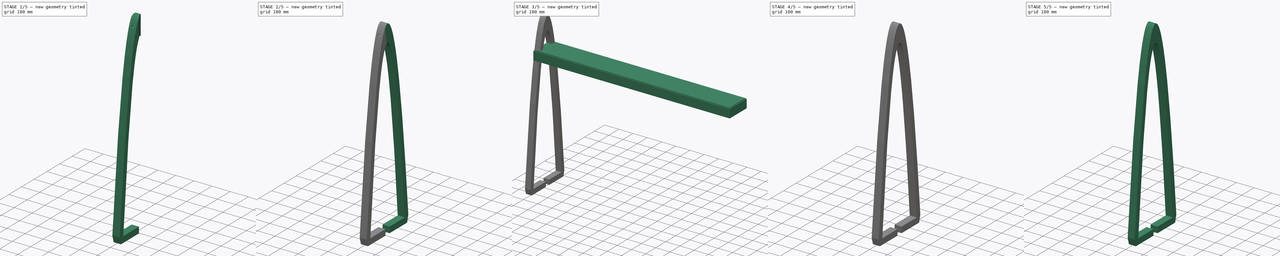
[diagram: build sequence overview — one tinted view per stage of 5, left to right]
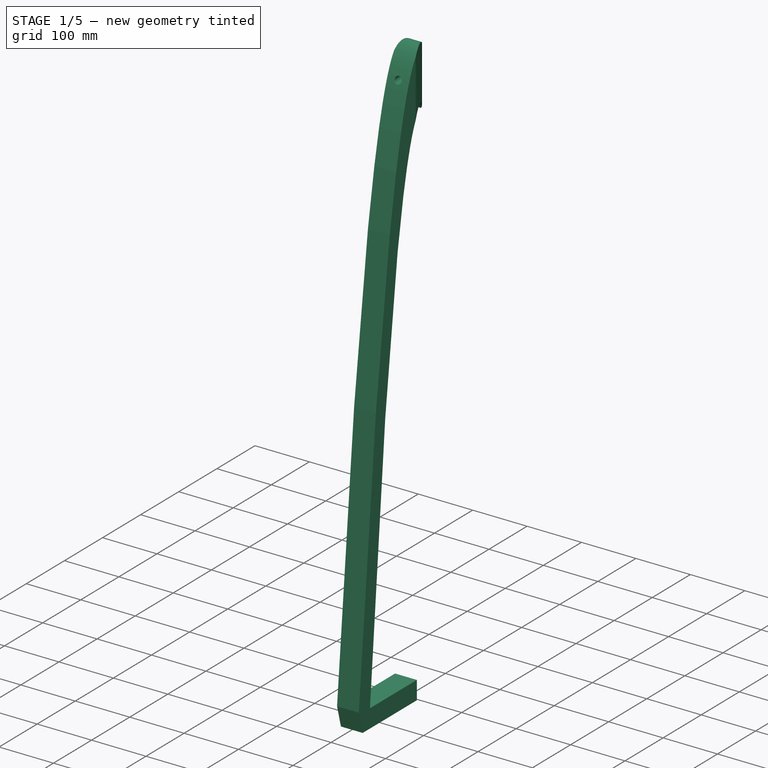
[diagram: stage 1 of 5 — iso view after this stage's code; geometry added in this stage tinted green]
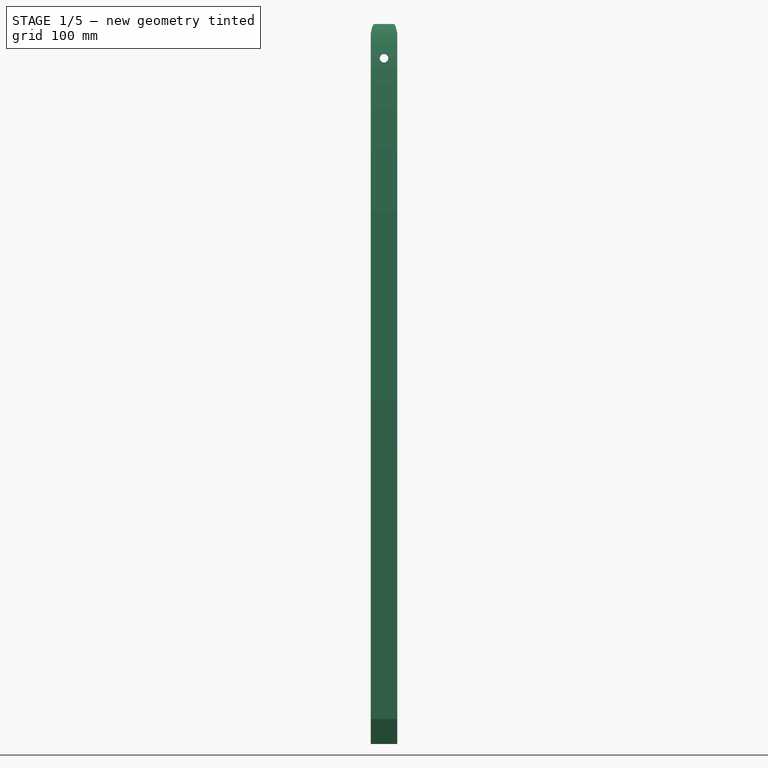
[diagram: stage 1 of 5 — front view after this stage's code; geometry added in this stage tinted green]
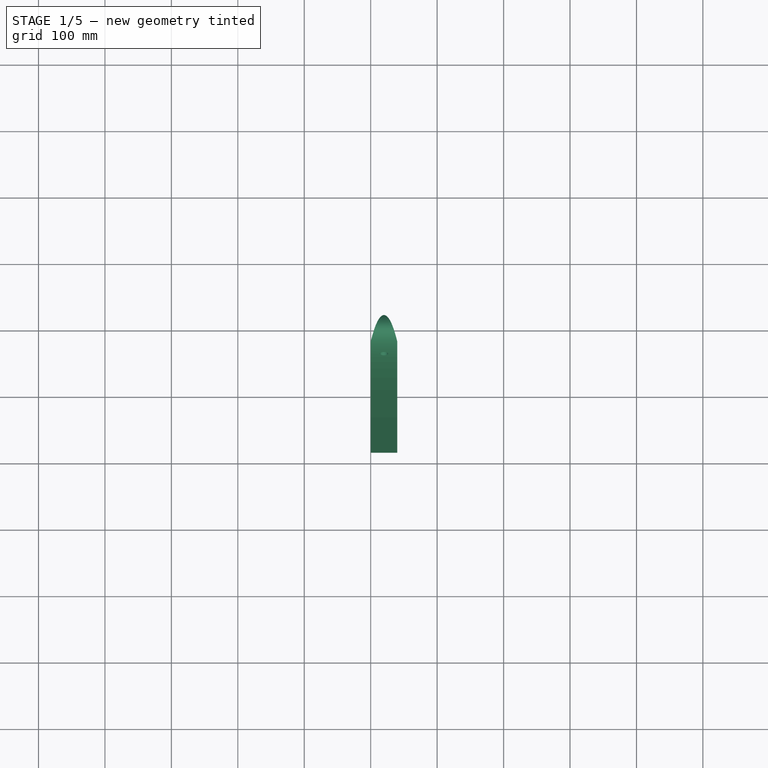
[diagram: stage 1 of 5 — top view after this stage's code; geometry added in this stage tinted green]
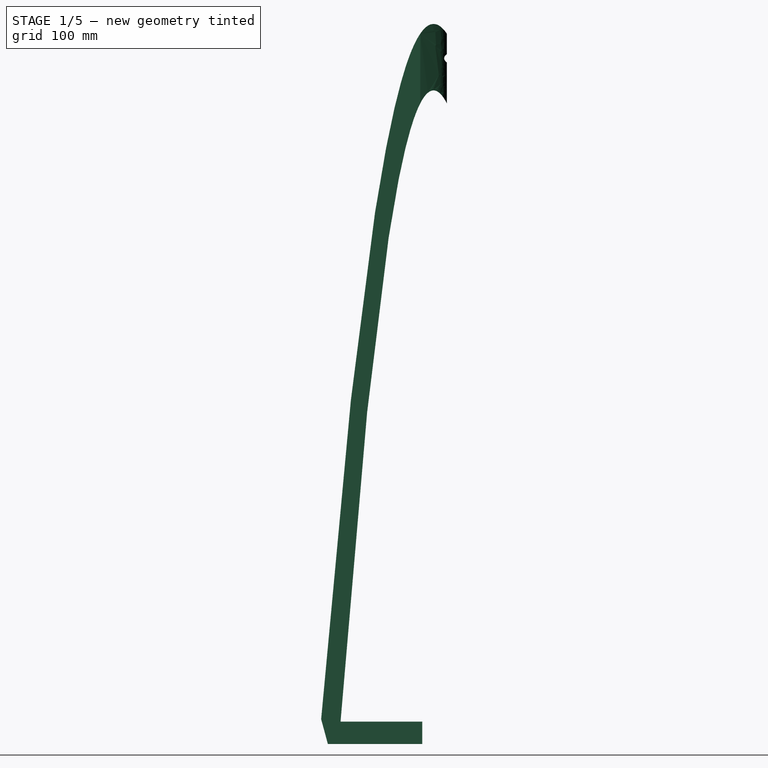
[diagram: stage 1 of 5 — right view after this stage's code; geometry added in this stage tinted green]
FCSTD DOCUMENT  (FreeCAD 0.20R29177 +426 (Git))
Label: glasbird
License: All rights reserved
LicenseURL: http://en.wikipedia.org/wiki/All_rights_reserved
objects: Part::Feature×11, Sketcher::SketchObject×9, Part::Extrusion×4, PartDesign::FeatureBase×4, PartDesign::Hole×4, Part::Box×2, PartDesign::Body×2, App::DocumentObjectGroup×2, Part::MultiFuse×2, Part::Cut×1
note: 43 computed .brp shape members not serialized (recipe doc carries the construction recipe); baked Part::Feature solids carry a one-line shape summary decoded from their .brp

FEATURE [Sketcher::SketchObject] Sketch001
  ExternalGeometry = -> [Extrude]
  FullyConstrained = false
  sketch-geometry (9):
    g0: LineSegment StartX=40 StartY=225.028 StartZ=0 EndX=40 EndY=-54.9723 EndZ=0
    g1: GeomPoint X=0 Y=85.0277 Z=0
    g2: LineSegment StartX=-233.878 StartY=342.883 StartZ=0 EndX=-233.878 EndY=340.794 EndZ=0
    g3: LineSegment StartX=0 StartY=85.0277 StartZ=0 EndX=40 EndY=85.0277 EndZ=0
    g4: LineSegment StartX=20 StartY=105.028 StartZ=0 EndX=20 EndY=65.0277 EndZ=0
    g5: GeomPoint X=20 Y=85.0277 Z=0
    g6: ArcOfParabola CenterX=20 CenterY=105.028 CenterZ=0 NormalX=0 NormalY=0 NormalZ=1 Focal=2.5 AngleXU=-1.5708 StartAngle=-31.4946 EndAngle=40.1554
    g7: GeomPoint X=20 Y=102.528 Z=0
    g8: LineSegment StartX=20 StartY=105.028 StartZ=0 EndX=20 EndY=102.528 EndZ=0
  constraints (16):
    c: Coincident(g0,g-3)
    c: Coincident(g0,g-4)
    c: PointOnObject(g3,g-2)
    c: PointOnObject(g5,g3)
    c: PointOnObject(g5,g4)
    c: Symmetric(g1,g3,g4)
    c: Symmetric(g4,g4,g3)
    c: Symmetric(g0,g0,g3)
    c: Symmetric(g-3,g-4,g1)
    c: Equal(g4,g3)
    c: InternalAlignment(g7,g6)
    c: Coincident(g7,g8)
    c: Coincident(g6,g8)
    c: PointOnObject(g7,g4)
    c: Coincident(g6,g4)
    c: Distance(g8) = 2.5
FEATURE [Part::Extrusion] Extrude001
  Base = -> Sketch001
  Dir = (0,0,1)
  DirMode = 2
  FaceMakerClass = Part::FaceMakerBullseye
  LengthFwd = 400
  LengthRev = 0
  Solid = false
  Symmetric = false
FEATURE [Part::Feature] Extrude001_solid  label="parabolajoin"
  shape: bbox 71.65 x 161.2 x 400 mm, 1 faces (baked)
FEATURE [Part::Feature] Solid  label="Penis"
  shape: bbox 40 x 189.2 x 1084 mm, 7 faces (baked)
FEATURE [Part::Feature] Solid001  label="Vagina"
  shape: bbox 40 x 189 x 1084 mm, 7 faces (baked)
FEATURE [Sketcher::SketchObject] Sketch002
  FullyConstrained = false
  MapMode = 5
  Placement = pos=(0,0,0) rot=(1,0,0;1.5708rad)
  sketch-geometry (3):
    g0: LineSegment StartX=20 StartY=263.604 StartZ=0 EndX=20 EndY=161.954 EndZ=0
    g1: LineSegment StartX=0 StartY=212.779 StartZ=0 EndX=40 EndY=212.779 EndZ=0
    g2: Circle CenterX=20 CenterY=212.779 CenterZ=0 NormalX=0 NormalY=0 NormalZ=1 AngleXU=0 Radius=10
  constraints (8):
    c: Vertical(g0)
    c: PointOnObject(g1,g-2)
    c: Symmetric(g0,g0,g1)
    c: PointOnObject(g2,g1)
    c: Tangent(g2,g0) = -1.5708
    c: Symmetric(g1,g1,g0)
    c: Distance(g1) = 40
    c: Diameter(g2) = 20
FEATURE [Part::Feature] Face  label="holecircle"
  shape: bbox 20 x 2e-07 x 20 mm, 1 faces, 0 solids (baked)
FEATURE [PartDesign::FeatureBase] BaseFeature
  BaseFeature = -> Solid
FEATURE [PartDesign::Body] Body002  label="vagina leg"
  BaseFeature = -> Solid001
  Group = -> [BaseFeature001,Sketch005,Hole]
  Origin = -> Origin002
  Tip = -> Hole
FEATURE [PartDesign::Hole] Hole001  label="finshed penis leg"
  BaseFeature = -> BaseFeature
  CustomThreadClearance = 0
  Depth = 2223.75
  DepthType = 1
  Diameter = 12.7
  DrillForDepth = false
  DrillPoint = 1
  DrillPointAngle = 118
  HoleCutCountersinkAngle = 90
  HoleCutCustomValues = false
  HoleCutDepth = 0
  HoleCutDiameter = 6.1
  HoleCutType = 0
  ModelThread = false
  Profile = -> Sketch004
  Tapered = false
  TaperedAngle = 90
  ThreadClass = 0
  ThreadDepth = 2223.75
  ThreadDepthType = 0
  ThreadDirection = 0
  ThreadFit = 0
  ThreadSize = 0
  ThreadType = 0
  Threaded = false
  UseCustomThreadClearance = false
FEATURE [Part::MultiFuse] Fusion001  label="printsupportpenis"
  Shapes = -> [Solid008,Hole001]
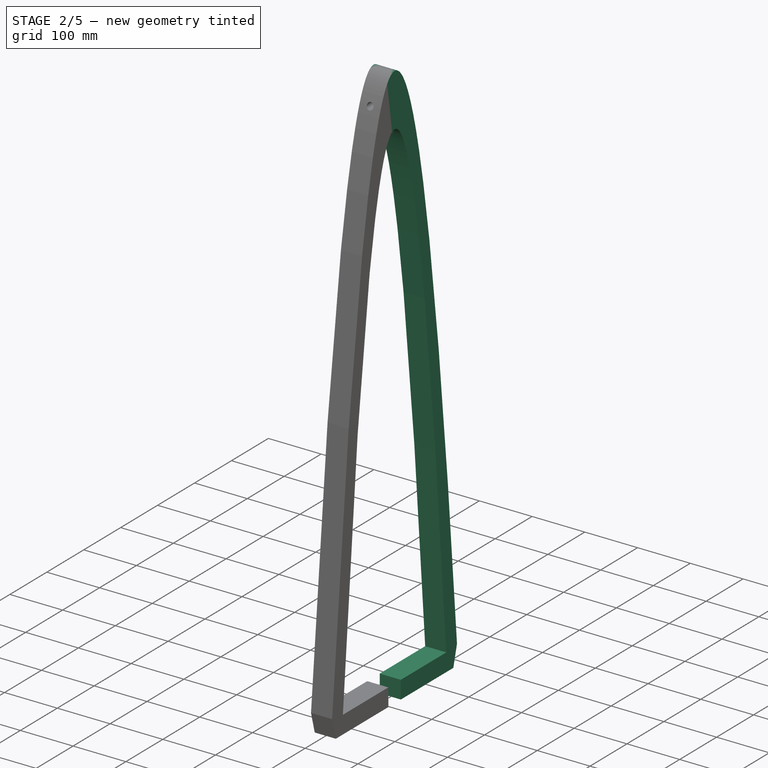
[diagram: stage 2 of 5 — iso view after this stage's code; geometry added in this stage tinted green]
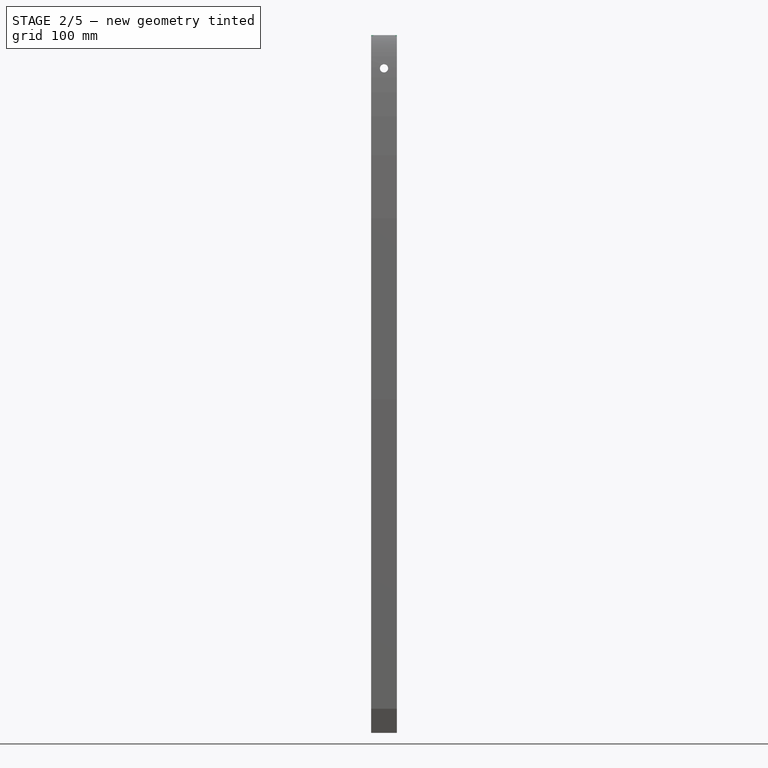
[diagram: stage 2 of 5 — front view after this stage's code; geometry added in this stage tinted green]
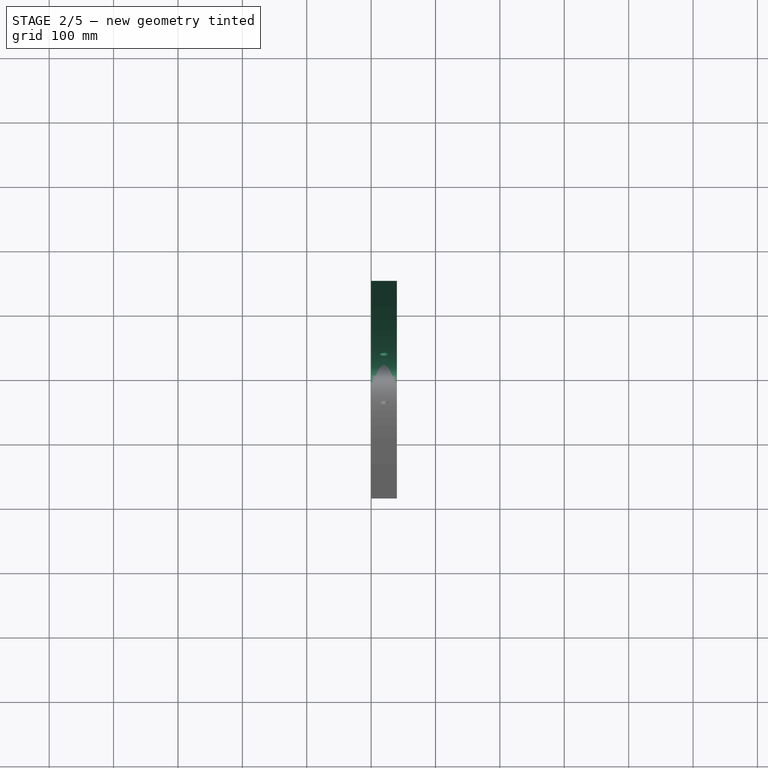
[diagram: stage 2 of 5 — top view after this stage's code; geometry added in this stage tinted green]
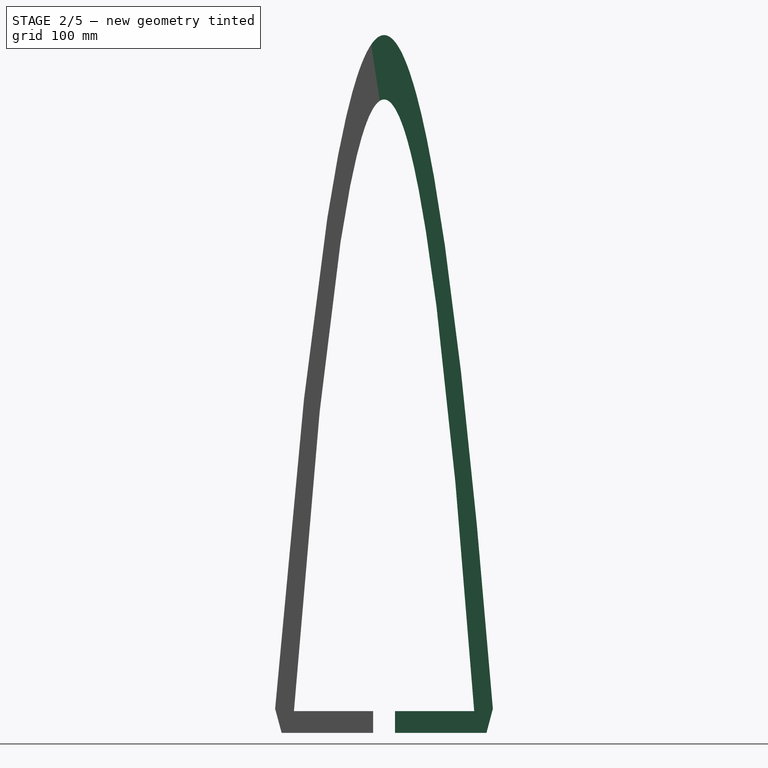
[diagram: stage 2 of 5 — right view after this stage's code; geometry added in this stage tinted green]
FEATURE [PartDesign::FeatureBase] BaseFeature001
  BaseFeature = -> Solid001
FEATURE [Sketcher::SketchObject] Sketch004
  FullyConstrained = false
  MapMode = 5
  Placement = pos=(0,0,0) rot=(1,0,0;1.5708rad)
  Support = -> [XZ_Plane002]
  sketch-geometry (3):
    g0: LineSegment StartX=20 StartY=263.604 StartZ=0 EndX=20 EndY=161.954 EndZ=0
    g1: LineSegment StartX=0 StartY=212.779 StartZ=0 EndX=40 EndY=212.779 EndZ=0
    g2: Circle CenterX=20 CenterY=212.779 CenterZ=0 NormalX=0 NormalY=0 NormalZ=1 AngleXU=0 Radius=10
  constraints (8):
    c: Vertical(g0)
    c: PointOnObject(g1,g-2)
    c: Symmetric(g0,g0,g1)
    c: PointOnObject(g2,g1)
    c: Tangent(g2,g0) = -1.5708
    c: Symmetric(g1,g1,g0)
    c: Distance(g1) = 40
    c: Diameter(g2) = 20
FEATURE [Sketcher::SketchObject] Sketch005
  FullyConstrained = false
  MapMode = 5
  Placement = pos=(0,0,0) rot=(1,0,0;1.5708rad)
  Support = -> [XZ_Plane003]
  sketch-geometry (3):
    g0: LineSegment StartX=20 StartY=263.604 StartZ=0 EndX=20 EndY=161.954 EndZ=0
    g1: LineSegment StartX=0 StartY=212.779 StartZ=0 EndX=40 EndY=212.779 EndZ=0
    g2: Circle CenterX=20 CenterY=212.779 CenterZ=0 NormalX=0 NormalY=0 NormalZ=1 AngleXU=0 Radius=10
  constraints (8):
    c: Vertical(g0)
    c: PointOnObject(g1,g-2)
    c: Symmetric(g0,g0,g1)
    c: PointOnObject(g2,g1)
    c: Tangent(g2,g0) = -1.5708
    c: Symmetric(g1,g1,g0)
    c: Distance(g1) = 40
    c: Diameter(g2) = 20
FEATURE [PartDesign::Hole] Hole  label="Finished vagina leg"
  BaseFeature = -> BaseFeature001
  CustomThreadClearance = 0
  Depth = 2249.98
  DepthType = 1
  Diameter = 12.7
  DrillForDepth = false
  DrillPoint = 1
  DrillPointAngle = 118
  HoleCutCountersinkAngle = 90
  HoleCutCustomValues = false
  HoleCutDepth = 0
  HoleCutDiameter = 6.1
  HoleCutType = 0
  ModelThread = false
  Profile = -> Sketch005
  Tapered = false
  TaperedAngle = 90
  ThreadClass = 0
  ThreadDepth = 2249.98
  ThreadDepthType = 0
  ThreadDirection = 0
  ThreadFit = 0
  ThreadSize = 0
  ThreadType = 0
  Threaded = false
  UseCustomThreadClearance = false
FEATURE [Part::Feature] Solid007
  shape: bbox 40 x 142.1 x 33.76 mm, 6 faces (baked)
FEATURE [Part::Feature] Solid008
  shape: bbox 40 x 142.1 x 33.75 mm, 6 faces (baked)
FEATURE [Part::MultiFuse] Fusion  label="printsupportvagina"
  Shapes = -> [Hole,Solid007]
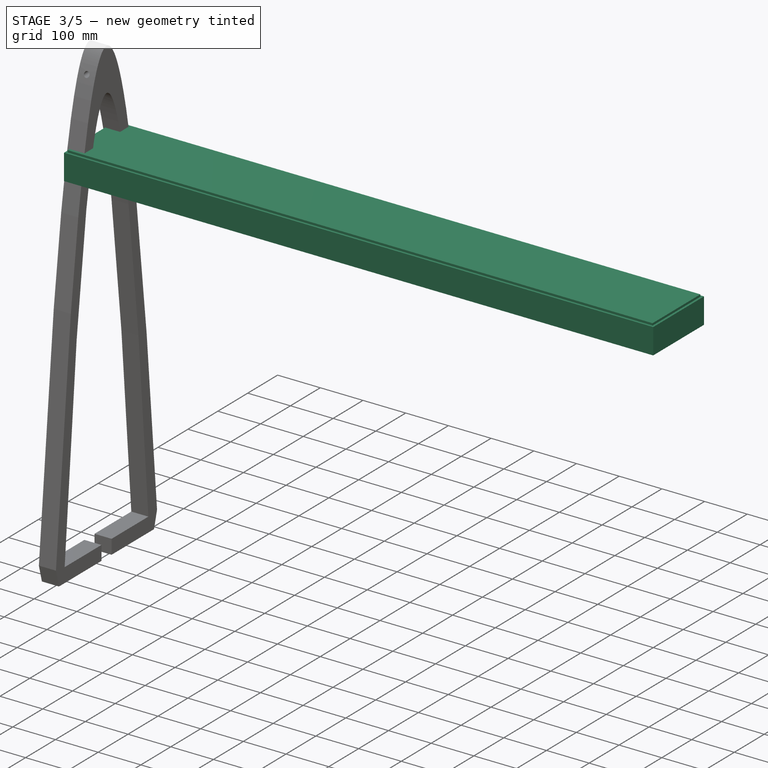
[diagram: stage 3 of 5 — iso view after this stage's code; geometry added in this stage tinted green]
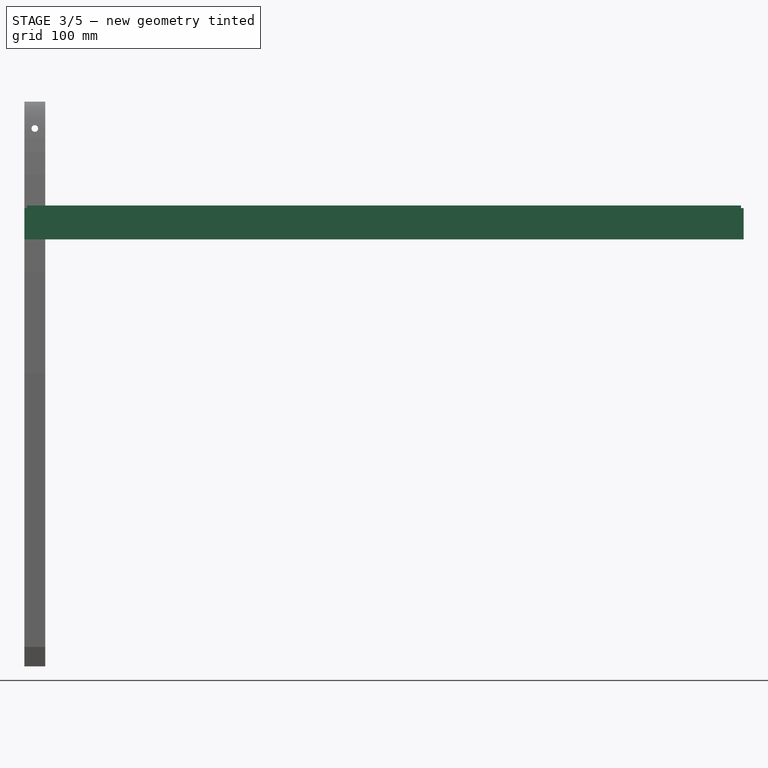
[diagram: stage 3 of 5 — front view after this stage's code; geometry added in this stage tinted green]
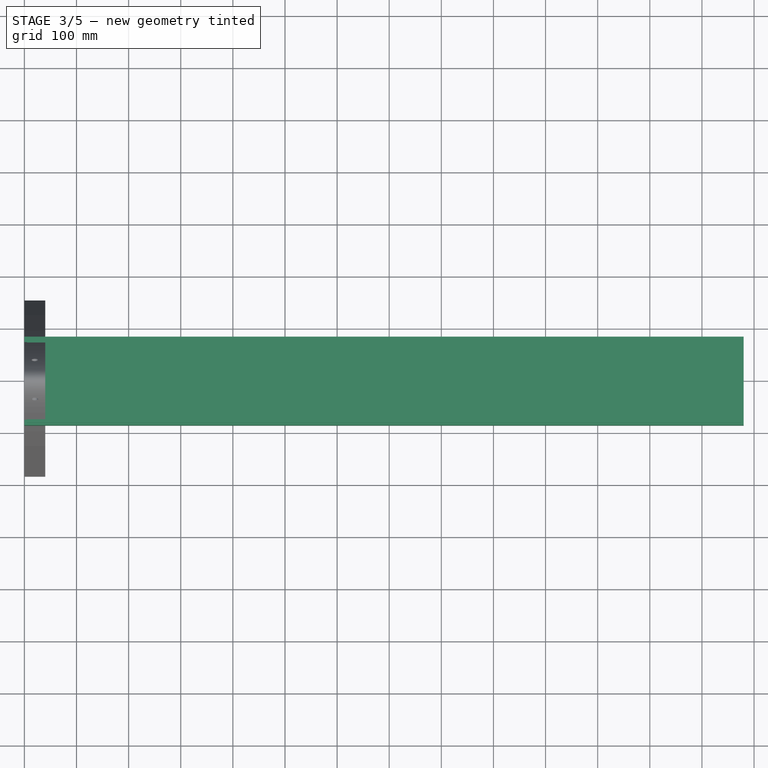
[diagram: stage 3 of 5 — top view after this stage's code; geometry added in this stage tinted green]
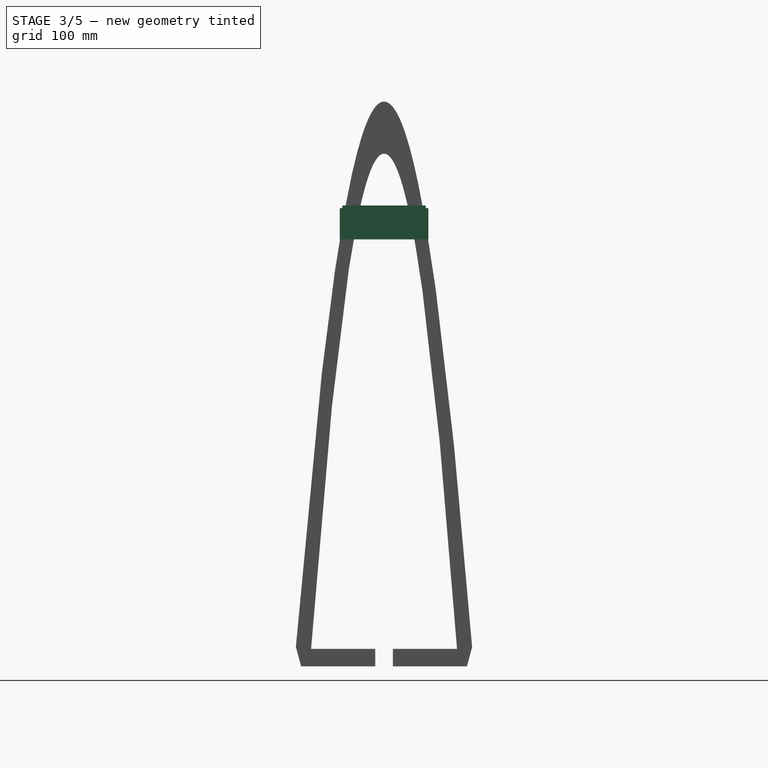
[diagram: stage 3 of 5 — right view after this stage's code; geometry added in this stage tinted green]
FEATURE [Part::Box] Box
  AttacherType = Attacher::AttachEngine3D
  Height = 60
  Length = 1380
  Width = 170
FEATURE [Part::Box] Box001
  AttacherType = Attacher::AttachEngine3D
  Height = 60
  Length = 1370
  Placement = pos=(5,5,5) rot=(0,0,1;0rad)
  Width = 160
FEATURE [Sketcher::SketchObject] Sketch008  label="ender 3 printable area"
  FullyConstrained = false
  MapMode = 5
  Placement = pos=(0,0,0) rot=(0.57735,0.57735,0.57735;2.0944rad)
  Support = -> [YZ_Plane001]
  sketch-geometry (5):
    g0: LineSegment StartX=-20.819 StartY=310.548 StartZ=0 EndX=179.181 EndY=310.548 EndZ=0
    g1: LineSegment StartX=179.181 StartY=310.548 StartZ=0 EndX=179.181 EndY=110.548 EndZ=0
    g2: LineSegment StartX=179.181 StartY=110.548 StartZ=0 EndX=-20.819 EndY=110.548 EndZ=0
    g3: LineSegment StartX=-20.819 StartY=110.548 StartZ=0 EndX=-20.819 EndY=310.548 EndZ=0
    g4: LineSegment StartX=-20.819 StartY=110.548 StartZ=0 EndX=179.181 EndY=110.548 EndZ=0
  constraints (12):
    c: Coincident(g0,g1)
    c: Coincident(g1,g2)
    c: Coincident(g2,g3)
    c: Coincident(g3,g0)
    c: Horizontal(g0)
    c: Horizontal(g2)
    c: Vertical(g1)
    c: Vertical(g3)
    c: Distance(g1) = 200
    c: Equal(g2,g1)
    c: Coincident(g4,g2)
    c: Coincident(g4,g1)
FEATURE [Part::Extrusion] Extrude002
  Base = -> Sketch008
  Dir = (1,0,0)
  DirMode = 0
  FaceMakerClass = Part::FaceMakerBullseye
  LengthFwd = 200
  LengthRev = 0
  Placement = pos=(-60,0,0) rot=(0,0,1;0rad)
  Solid = false
  Symmetric = false
FEATURE [Part::Feature] Solid005  label="ender3 penis final"
  shape: bbox 40 x 84.86 x 153.9 mm, 7 faces (baked)
FEATURE [Part::Feature] Solid006  label="ender 3 vagina final"
  shape: bbox 40 x 84.82 x 153.9 mm, 6 faces (baked)
FEATURE [App::DocumentObjectGroup] Group001  label="Leg Test Print for Ender 3"
  Group = -> [Hole002,BaseFeature002,BaseFeature003,Solid002,Solid003,XZ_Plane004,XZ_Plane005,Hole003,Sketch008,Extrude002,Solid005,Solid006]
FEATURE [Sketcher::SketchObject] Sketch009
  ExternalGeometry = -> [Extrude]
  FullyConstrained = false
  Placement = pos=(0,0,0) rot=(0.57735,0.57735,0.57735;2.0944rad)
  sketch-geometry (8):
    g0: LineSegment StartX=-74.0299 StartY=-819.335 StartZ=0 EndX=68.0853 EndY=-819.335 EndZ=0
    g1: LineSegment StartX=244.062 StartY=-819.348 StartZ=0 EndX=101.946 EndY=-819.348 EndZ=0
    g2: LineSegment StartX=-54.9723 StartY=-785.584 StartZ=0 EndX=68.0853 EndY=-785.584 EndZ=0
    g3: LineSegment StartX=101.946 StartY=-785.584 StartZ=0 EndX=225.028 EndY=-785.584 EndZ=0
    g4: LineSegment StartX=101.946 StartY=-785.584 StartZ=0 EndX=101.946 EndY=-819.348 EndZ=0
    g5: LineSegment StartX=68.0853 StartY=-785.584 StartZ=0 EndX=68.0853 EndY=-819.335 EndZ=0
    g6: LineSegment StartX=-54.9723 StartY=-785.584 StartZ=0 EndX=-74.0299 EndY=-819.335 EndZ=0
    g7: LineSegment StartX=225.028 StartY=-785.584 StartZ=0 EndX=244.062 EndY=-819.348 EndZ=0
  constraints (19):
    c: Horizontal(g0)
    c: Horizontal(g1)
    c: Equal(g0,g1)
    c: Horizontal(g2)
    c: Horizontal(g3)
    c: Coincident(g4,g3)
    c: Coincident(g4,g1)
    c: Coincident(g5,g2)
    c: Coincident(g5,g0)
    c: Vertical(g5)
    c: Vertical(g4)
    c: Coincident(g7,g3)
    c: Coincident(g7,g1)
    c: Coincident(g6,g2)
    c: Coincident(g6,g0)
    c: Coincident(g2,g-3)
    c: Coincident(g0,g-3)
    c: Coincident(g3,g-4)
    c: Coincident(g1,g-4)
FEATURE [Part::Feature] Face001
  shape: bbox 2e-07 x 318.1 x 33.76 mm, 2 faces, 0 solids (baked)
FEATURE [Part::Extrusion] Extrude003
  Base = -> Face001
  Dir = (1,0,0)
  DirMode = 2
  FaceMakerClass = Part::FaceMakerBullseye
  LengthFwd = 40
  LengthRev = 0
  Solid = true
  Symmetric = false
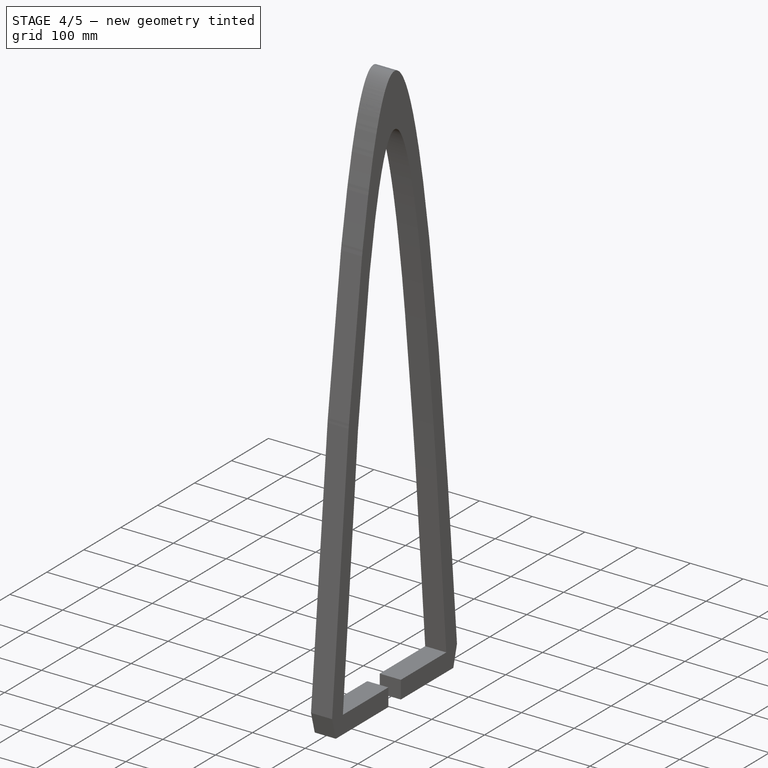
[diagram: stage 4 of 5 — iso view after this stage's code; geometry added in this stage tinted green]
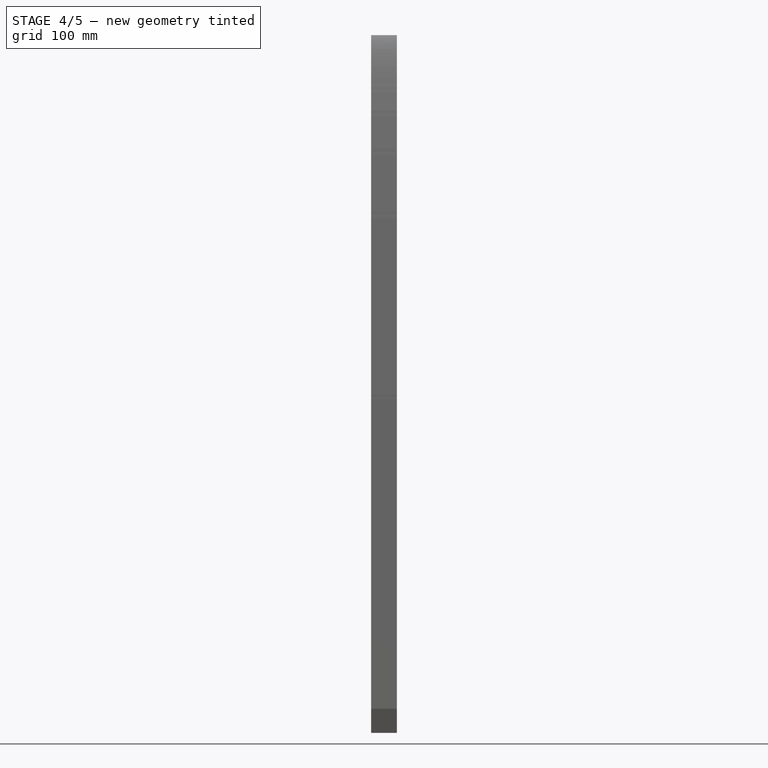
[diagram: stage 4 of 5 — front view after this stage's code; geometry added in this stage tinted green]
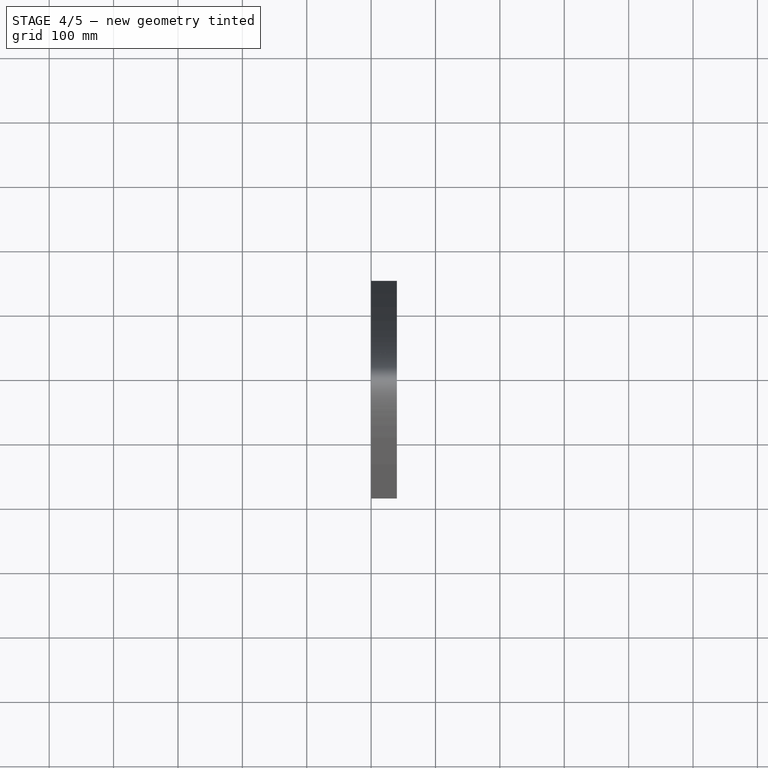
[diagram: stage 4 of 5 — top view after this stage's code; geometry added in this stage tinted green]
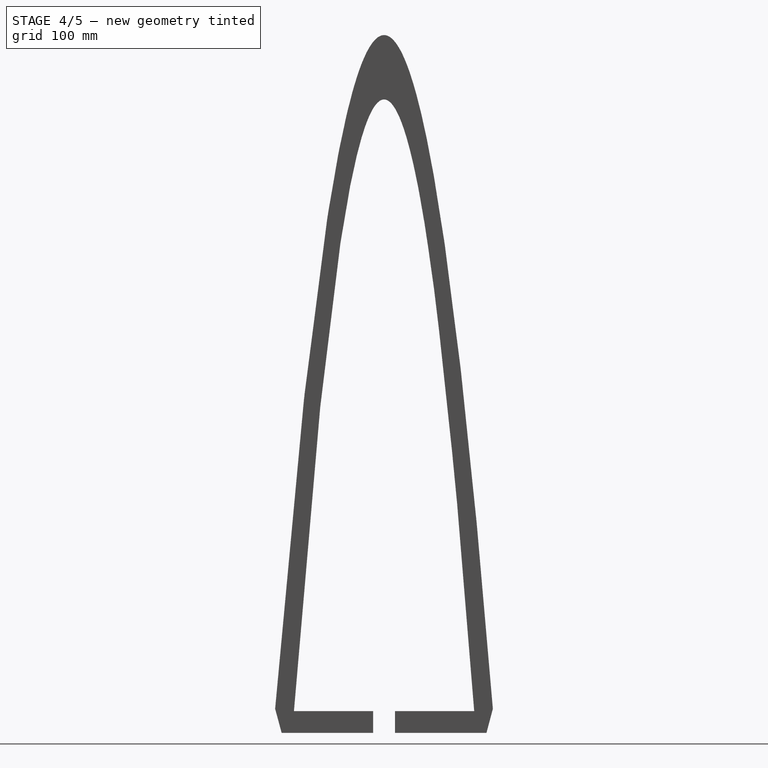
[diagram: stage 4 of 5 — right view after this stage's code; geometry added in this stage tinted green]
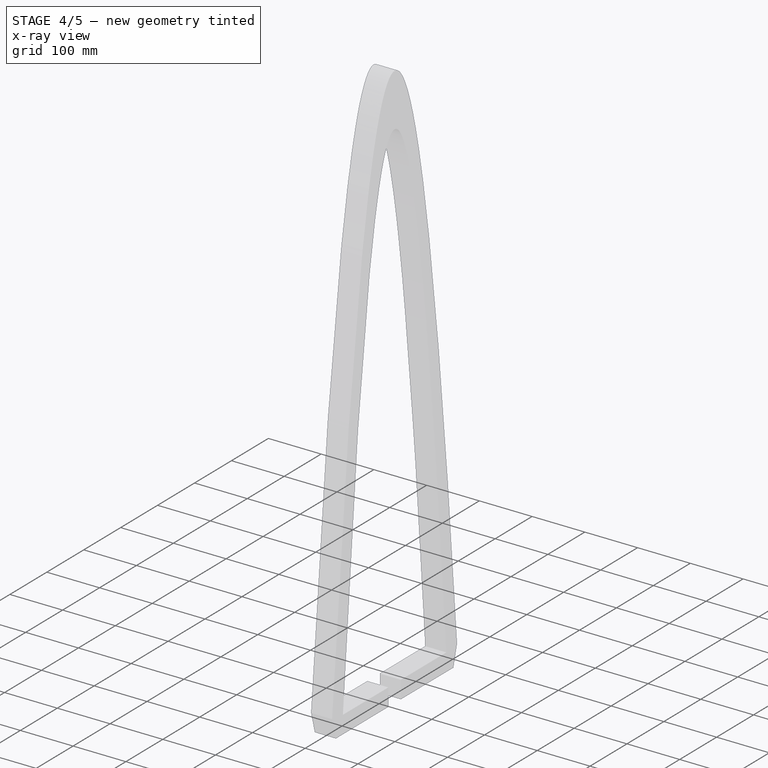
[diagram: stage 4 of 5 — x-ray composite at the iso view; earlier geometry ghosted, this stage's added geometry solid]
FEATURE [Part::Cut] Cut  label="trough"
  Base = -> Box
  Placement = pos=(66,0,0) rot=(0,0,1;0rad)
  Tool = -> Box001
FEATURE [Sketcher::SketchObject] Sketch
  ExternalGeometry = -> [Cut]
  FullyConstrained = false
  Placement = pos=(0,0,0) rot=(0.57735,0.57735,0.57735;2.0944rad)
  sketch-geometry (14):
    g0: ArcOfParabola CenterX=85.0277 CenterY=264.416 CenterZ=0 NormalX=0 NormalY=0 NormalZ=1 Focal=6.8311 AngleXU=-1.5709 StartAngle=-169.089 EndAngle=169.083
    g1: GeomPoint X=85.027 Y=257.584 Z=0
    g2: LineSegment StartX=85.0277 StartY=264.416 StartZ=0 EndX=85.027 EndY=257.584 EndZ=0
    g3: ArcOfParabola CenterX=85.0277 CenterY=164.416 CenterZ=0 NormalX=0 NormalY=0 NormalZ=1 Focal=5.15789 AngleXU=-1.5708 StartAngle=-140 EndAngle=140
    g4: GeomPoint X=85.0277 Y=159.258 Z=0
    g5: LineSegment StartX=85.0277 StartY=164.416 StartZ=0 EndX=85.0277 EndY=159.258 EndZ=0
    g6: LineSegment StartX=85.0277 StartY=164.416 StartZ=0 EndX=85.0277 EndY=-785.584 EndZ=0
    g7: LineSegment StartX=85.0277 StartY=-785.584 StartZ=0 EndX=225.028 EndY=-785.584 EndZ=0
    g8: LineSegment StartX=85.0277 StartY=-785.584 StartZ=0 EndX=-54.9723 EndY=-785.584 EndZ=0
    g9: LineSegment StartX=85.0277 StartY=164.416 StartZ=0 EndX=85.0277 EndY=264.416 EndZ=0
    g10: LineSegment StartX=-84.1654 StartY=-781.924 StartZ=0 EndX=-74.0299 EndY=-819.335 EndZ=0
    g11: LineSegment StartX=-54.9723 StartY=-785.584 StartZ=0 EndX=-74.0299 EndY=-819.335 EndZ=0
    g12: LineSegment StartX=225.028 StartY=-785.584 StartZ=0 EndX=244.062 EndY=-819.348 EndZ=0
    g13: LineSegment StartX=254.007 StartY=-781.887 StartZ=0 EndX=244.062 EndY=-819.348 EndZ=0
  constraints (32):
    c: InternalAlignment(g1,g0)
    c: Coincident(g1,g2)
    c: Coincident(g0,g2)
    c: PointOnObject(g-5,g0)
    c: PointOnObject(g-4,g0)
    c: InternalAlignment(g4,g3)
    c: Coincident(g4,g5)
    c: Coincident(g3,g5)
    c: Coincident(g6,g3)
    c: Vertical(g6)
    c: Coincident(g7,g6)
    c: Coincident(g7,g3)
    c: Horizontal(g7)
    c: Coincident(g8,g7)
    c: Coincident(g8,g3)
    c: Horizontal(g8)
    c: Equal(g7,g8)
    c: Coincident(g9,g3)
    c: Coincident(g9,g0)
    c: Distance(g6) = 950
    c: Distance(g7) = 140
    c: Perpendicular(g-1,g9)
    c: Distance(g9) = 100
    c: Coincident(g10,g0)
    c: Coincident(g11,g3)
    c: Coincident(g11,g10)
    c: Coincident(g12,g3)
    c: Coincident(g13,g0)
    c: Coincident(g13,g12)
    c: Equal(g13,g12)
    c: Equal(g12,g11)
    c: Equal(g11,g10)
FEATURE [Part::Extrusion] Extrude  label="leg"
  Base = -> Sketch
  Dir = (1,0,0)
  DirMode = 2
  FaceMakerClass = Part::FaceMakerBullseye
  LengthFwd = 40
  LengthRev = 0
  Solid = true
  Symmetric = false
FEATURE [PartDesign::Body] Body001  label="penis Leg"
  BaseFeature = -> Solid
  Group = -> [BaseFeature,Sketch004,Hole001]
  Origin = -> Origin001
  Tip = -> Hole001
FEATURE [App::DocumentObjectGroup] Group  label="Leg Master"
  Group = -> [Extrude,Extrude001,Extrude001_solid,Solid,Solid001,Face,Sketch002,Body001,Body002]
FEATURE [Sketcher::SketchObject] Sketch006
  FullyConstrained = false
  MapMode = 5
  Placement = pos=(0,0,0) rot=(1,0,0;1.5708rad)
  Support = -> [XZ_Plane004]
  sketch-geometry (3):
    g0: LineSegment StartX=20 StartY=263.604 StartZ=0 EndX=20 EndY=161.954 EndZ=0
    g1: LineSegment StartX=0 StartY=212.779 StartZ=0 EndX=40 EndY=212.779 EndZ=0
    g2: Circle CenterX=20 CenterY=212.779 CenterZ=0 NormalX=0 NormalY=0 NormalZ=1 AngleXU=0 Radius=10
  constraints (8):
    c: Vertical(g0)
    c: PointOnObject(g1,g-2)
    c: Symmetric(g0,g0,g1)
    c: PointOnObject(g2,g1)
    c: Tangent(g2,g0) = -1.5708
    c: Symmetric(g1,g1,g0)
    c: Distance(g1) = 40
    c: Diameter(g2) = 20
FEATURE [Sketcher::SketchObject] Sketch007
  FullyConstrained = false
  MapMode = 5
  Placement = pos=(0,0,0) rot=(1,0,0;1.5708rad)
  Support = -> [XZ_Plane005]
  sketch-geometry (3):
    g0: LineSegment StartX=20 StartY=263.604 StartZ=0 EndX=20 EndY=161.954 EndZ=0
    g1: LineSegment StartX=0 StartY=212.779 StartZ=0 EndX=40 EndY=212.779 EndZ=0
    g2: Circle CenterX=20 CenterY=212.779 CenterZ=0 NormalX=0 NormalY=0 NormalZ=1 AngleXU=0 Radius=10
  constraints (8):
    c: Vertical(g0)
    c: PointOnObject(g1,g-2)
    c: Symmetric(g0,g0,g1)
    c: PointOnObject(g2,g1)
    c: Tangent(g2,g0) = -1.5708
    c: Symmetric(g1,g1,g0)
    c: Distance(g1) = 40
    c: Diameter(g2) = 20
FEATURE [Part::Feature] Solid002  label="Penis001"
  shape: bbox 40 x 189.2 x 1084 mm, 7 faces (baked)
FEATURE [PartDesign::FeatureBase] BaseFeature002
  BaseFeature = -> Solid002
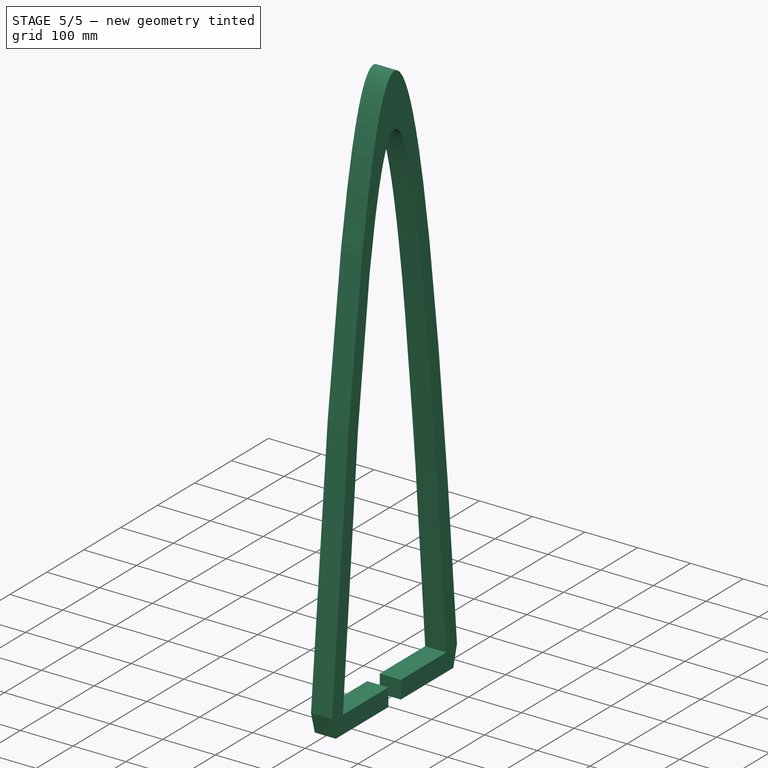
[diagram: stage 5 of 5 — iso view after this stage's code; geometry added in this stage tinted green]
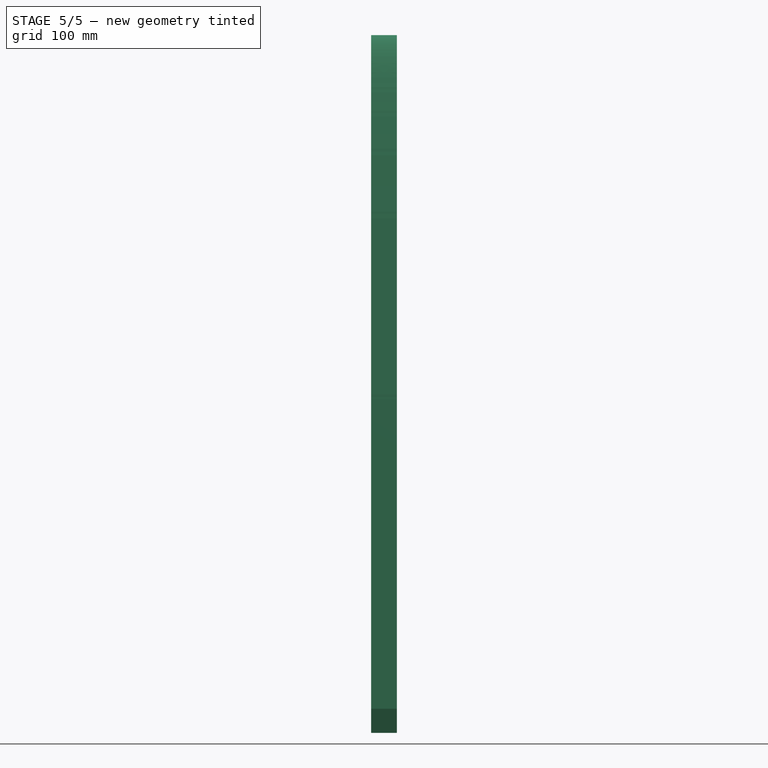
[diagram: stage 5 of 5 — front view after this stage's code; geometry added in this stage tinted green]
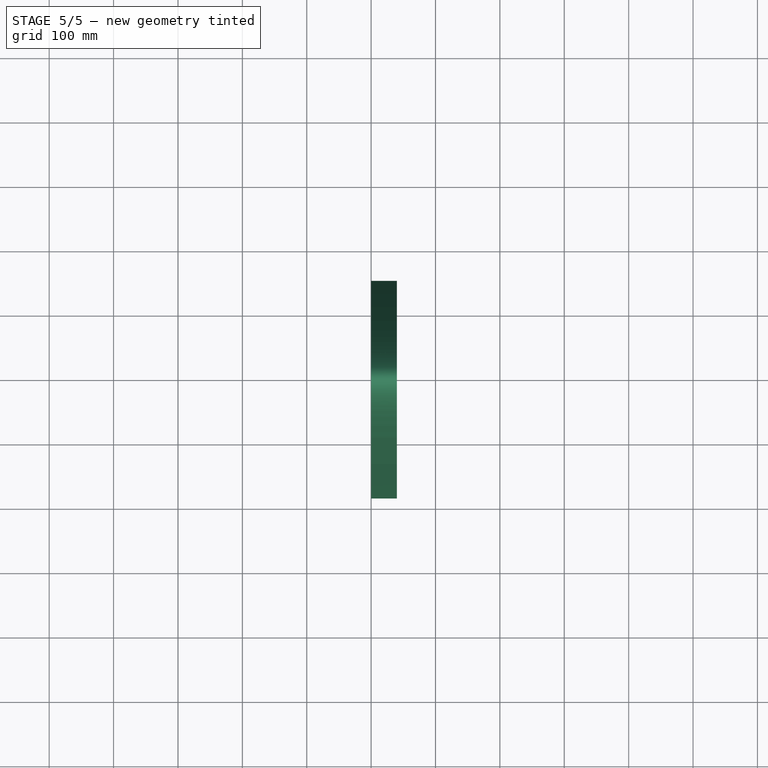
[diagram: stage 5 of 5 — top view after this stage's code; geometry added in this stage tinted green]
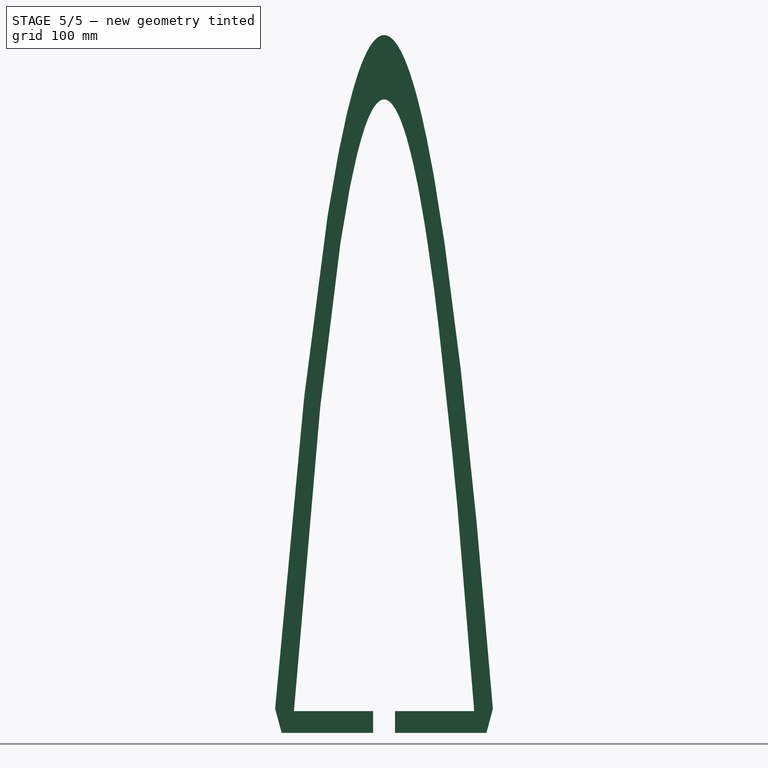
[diagram: stage 5 of 5 — right view after this stage's code; geometry added in this stage tinted green]
FEATURE [PartDesign::Hole] Hole003  label="finshed penis leg001"
  BaseFeature = -> BaseFeature002
  CustomThreadClearance = 0
  Depth = 2223.75
  DepthType = 1
  Diameter = 12.7
  DrillForDepth = false
  DrillPoint = 1
  DrillPointAngle = 118
  HoleCutCountersinkAngle = 90
  HoleCutCustomValues = false
  HoleCutDepth = 0
  HoleCutDiameter = 6.1
  HoleCutType = 0
  ModelThread = false
  Profile = -> Sketch006
  Tapered = false
  TaperedAngle = 90
  ThreadClass = 0
  ThreadDepth = 2223.75
  ThreadDepthType = 0
  ThreadDirection = 0
  ThreadFit = 0
  ThreadSize = 0
  ThreadType = 0
  Threaded = false
  UseCustomThreadClearance = false
FEATURE [Part::Feature] Solid003  label="Vagina001"
  shape: bbox 40 x 189 x 1084 mm, 7 faces (baked)
FEATURE [PartDesign::FeatureBase] BaseFeature003
  BaseFeature = -> Solid003
FEATURE [PartDesign::Hole] Hole002  label="Finished vagina leg001"
  BaseFeature = -> BaseFeature003
  CustomThreadClearance = 0
  Depth = 2249.98
  DepthType = 1
  Diameter = 12.7
  DrillForDepth = false
  DrillPoint = 1
  DrillPointAngle = 118
  HoleCutCountersinkAngle = 90
  HoleCutCustomValues = false
  HoleCutDepth = 0
  HoleCutDiameter = 6.1
  HoleCutType = 0
  ModelThread = false
  Profile = -> Sketch007
  Tapered = false
  TaperedAngle = 90
  ThreadClass = 0
  ThreadDepth = 2249.98
  ThreadDepthType = 0
  ThreadDirection = 0
  ThreadFit = 0
  ThreadSize = 0
  ThreadType = 0
  Threaded = false
  UseCustomThreadClearance = false
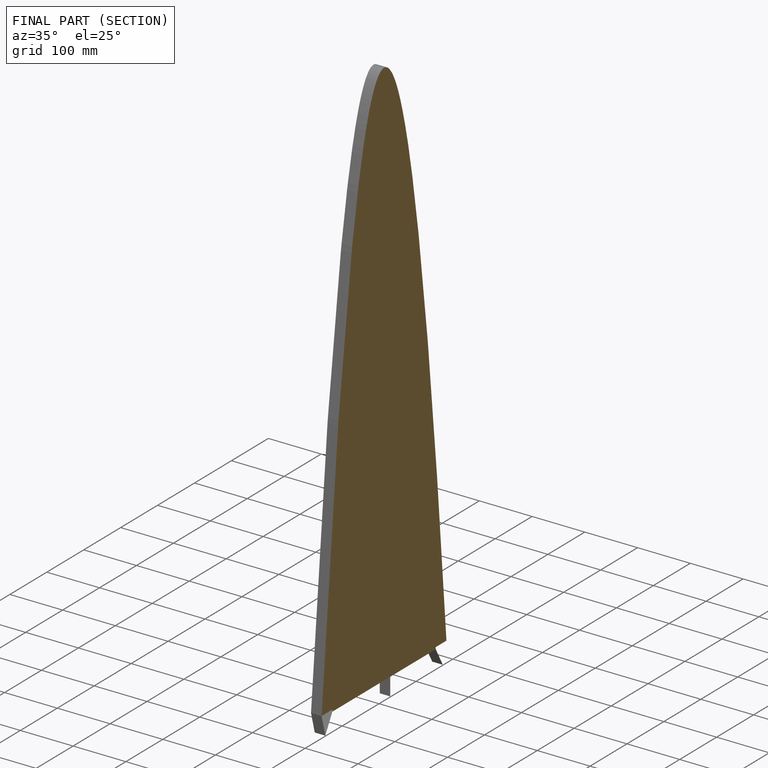
[diagram: finished part — half-section view (interior)]
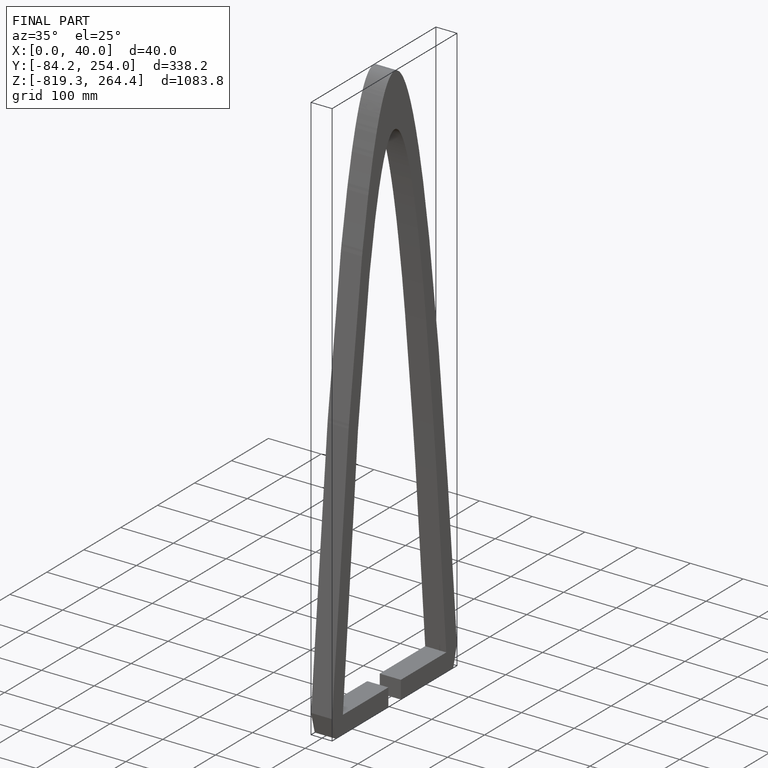
[diagram: finished part — iso view with bounding-box wireframe]
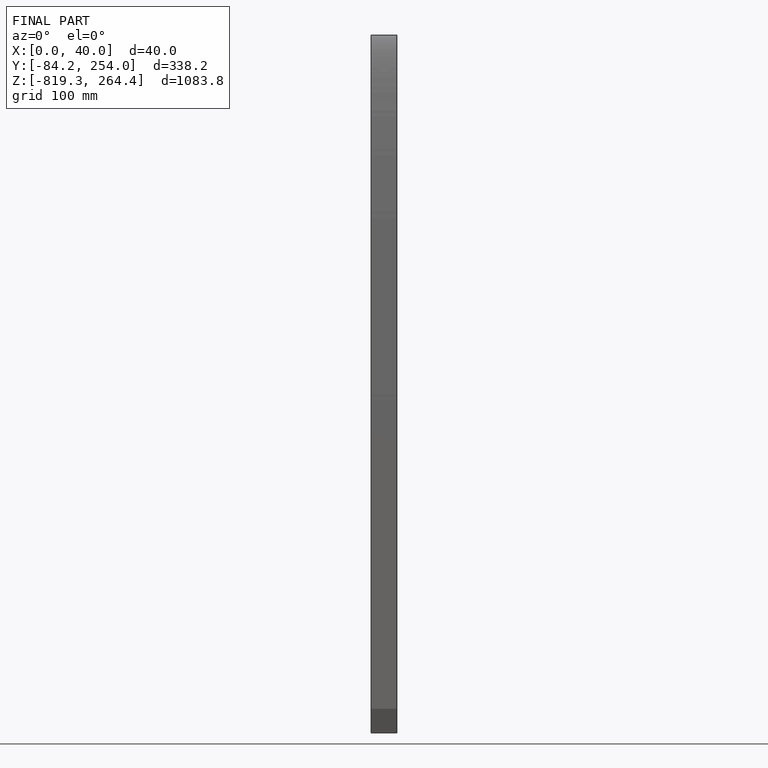
[diagram: finished part — front view with bounding-box wireframe]
